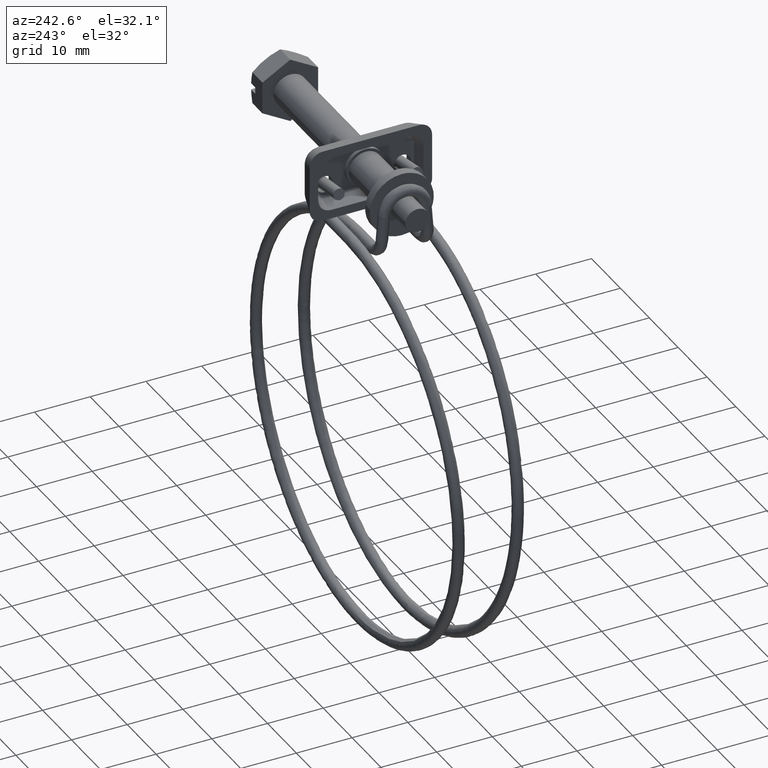
[diagram: clean part render]
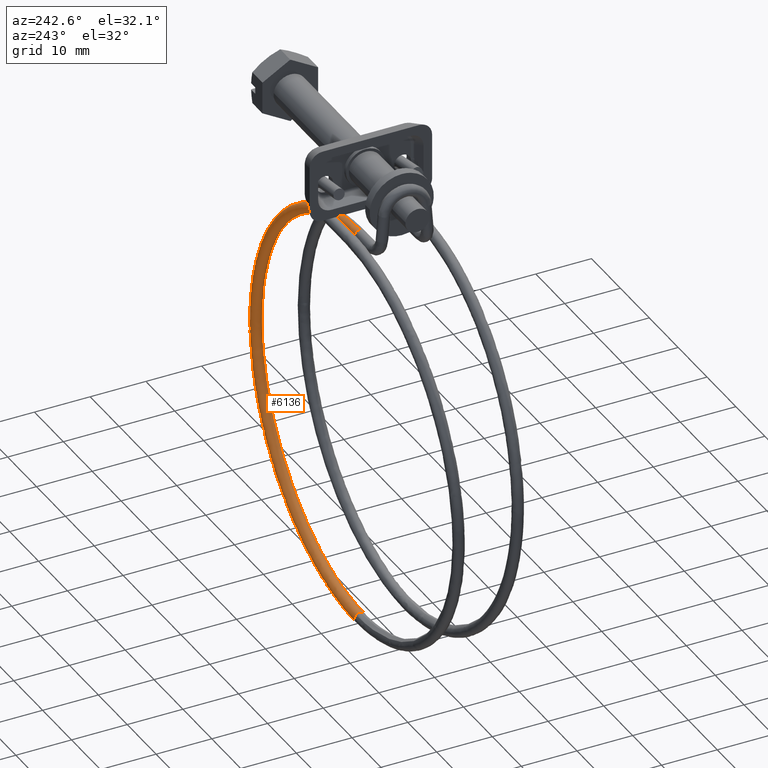
[diagram: same view with one face highlighted and labeled with its STEP entity id]
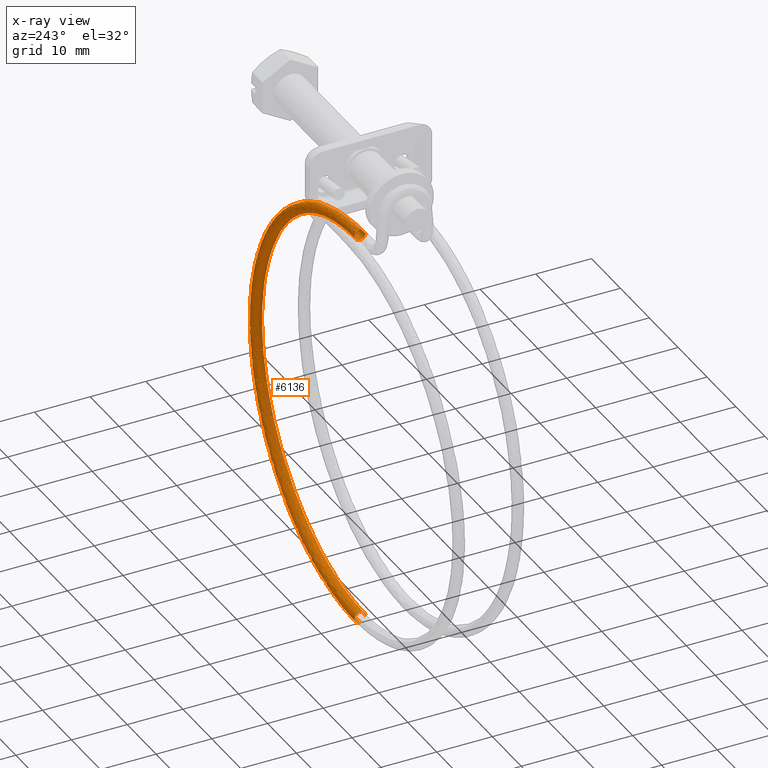
[diagram: x-ray of the same camera — body ghosted, the highlighted face saturated]
A machine part, auxiliary view. The second image highlights one B-rep face of the part: STEP entity #6136.
The next image is the same camera in x-ray: the body ghosted, the highlighted face saturated — about 1% of this face is hidden behind the body in this view.
In plain terms, the highlighted face is a freeform B-spline surface patch.
Its self-contained STEP definition (entity closure, byte-faithful):
#5485=CARTESIAN_POINT('',(-32.449999999944460,4.751499080579981,-8.742188882090543));
#5486=VERTEX_POINT('',#5485);
#5492=CARTESIAN_POINT('',(-32.450000000000799,4.300002000000000,-8.850001000000201));
#5493=VERTEX_POINT('',#5492);
#5494=CARTESIAN_POINT('',(-32.450000000000799,4.300002000000000,-8.850001000000201));
#5495=CARTESIAN_POINT('',(-32.450000000005510,4.538800049437971,-8.850034728318569));
#5496=CARTESIAN_POINT('',(-32.449999999944460,4.751499080579982,-8.742188882090543));
#5504=(BOUNDED_CURVE()B_SPLINE_CURVE(2,(#5494,#5495,#5496),.UNSPECIFIED.,.F.,.U.)B_SPLINE_CURVE_WITH_KNOTS((3,3),(0.0,0.076823484467236),.UNSPECIFIED.)CURVE()GEOMETRIC_REPRESENTATION_ITEM()RATIONAL_B_SPLINE_CURVE((1.0,0.909995689415704,0.875306936880663))REPRESENTATION_ITEM(''));
#5505=EDGE_CURVE('',#5493,#5486,#5504,.T.);
#5507=CARTESIAN_POINT('',(-32.449999999988933,3.302436391020597,-7.919735179436737));
#5508=VERTEX_POINT('',#5507);
#5509=CARTESIAN_POINT('',(-32.449999999988940,3.302436391020597,-7.919735179436737));
#5510=CARTESIAN_POINT('',(-32.450000000000792,3.367466891717507,-8.850001000000201));
#5511=CARTESIAN_POINT('',(-32.450000000000799,4.300002000000000,-8.850001000000201));
#5519=(BOUNDED_CURVE()B_SPLINE_CURVE(2,(#5509,#5510,#5511),.UNSPECIFIED.,.F.,.U.)B_SPLINE_CURVE_WITH_KNOTS((3,3),(0.762166633395311,1.0),.UNSPECIFIED.)CURVE()GEOMETRIC_REPRESENTATION_ITEM()RATIONAL_B_SPLINE_CURVE((0.972879199707561,0.721360878855651,1.0))REPRESENTATION_ITEM(''));
#5520=EDGE_CURVE('',#5508,#5493,#5519,.T.);
#5522=CARTESIAN_POINT('',(-32.449999998781593,4.293718980057824,-6.850040477898297));
#5523=VERTEX_POINT('',#5522);
#5539=CARTESIAN_POINT('',(-32.449999999354013,5.297414038749491,-7.806457974084745));
#5540=VERTEX_POINT('',#5539);
#5541=CARTESIAN_POINT('',(-32.449999999354006,5.297414038749491,-7.806457974084745));
#5542=CARTESIAN_POINT('',(-32.449999998776256,5.251955450665804,-6.850002301299442));
#5543=CARTESIAN_POINT('',(-32.449999998781593,4.293718980057824,-6.850040477898297));
#5551=(BOUNDED_CURVE()B_SPLINE_CURVE(2,(#5541,#5542,#5543),.UNSPECIFIED.,.F.,.U.)B_SPLINE_CURVE_WITH_KNOTS((3,3),(0.257622487838283,0.500000000000000),.UNSPECIFIED.)CURVE()GEOMETRIC_REPRESENTATION_ITEM()RATIONAL_B_SPLINE_CURVE((0.982683968838161,0.716037081179831,1.0))REPRESENTATION_ITEM(''));
#5552=EDGE_CURVE('',#5540,#5523,#5551,.T.);
#5654=CARTESIAN_POINT('',(-32.449999999944460,4.751499080579982,-8.742188882090543));
#5655=CARTESIAN_POINT('',(-32.449999999765637,5.299587624129888,-8.464498038340457));
#5656=CARTESIAN_POINT('',(-32.449999999381212,5.298441847448703,-7.849949297275303));
#5657=CARTESIAN_POINT('',(-32.449999999367591,5.298401285167072,-7.828193313304312));
#5658=CARTESIAN_POINT('',(-32.449999999354013,5.297414038749491,-7.806457974084745));
#5666=(BOUNDED_CURVE()B_SPLINE_CURVE(2,(#5654,#5655,#5656,#5657,#5658),.UNSPECIFIED.,.F.,.U.)B_SPLINE_CURVE_WITH_KNOTS((3,2,3),(0.076823484467236,0.250000000000000,0.257622487838282),.UNSPECIFIED.)CURVE()GEOMETRIC_REPRESENTATION_ITEM()RATIONAL_B_SPLINE_CURVE((0.875306936880663,0.797111091770843,1.0,0.991069700006716,0.982683968838161))REPRESENTATION_ITEM(''));
#5667=EDGE_CURVE('',#5486,#5540,#5666,.T.);
#6024=CARTESIAN_POINT('',(-37.423201233787459,3.302436326158569,-79.434426499103012));
#6025=CARTESIAN_POINT('',(4.003053115822867,3.302436326158568,-85.224068915779625));
#6026=CARTESIAN_POINT('',(3.477429845606320,3.302436326158569,-43.398499835019983));
#6027=CARTESIAN_POINT('',(2.963133057472227,3.302436326158567,-2.474216115136039));
#6028=CARTESIAN_POINT('',(-37.549993414134590,3.302436326158568,-8.283526114390204));
#6029=CARTESIAN_POINT('',(-37.292809021267480,3.368289162159302,-78.501439524725924));
#6030=CARTESIAN_POINT('',(3.047291620272104,3.368289162159304,-84.139283482236877));
#6031=CARTESIAN_POINT('',(2.535449650657238,3.368289162159302,-43.410337730389507));
#6032=CARTESIAN_POINT('',(2.034637194434173,3.368289162159304,-3.559046565839207));
#6033=CARTESIAN_POINT('',(-37.416276841278396,3.368289162159303,-9.216042442175782));
#6034=CARTESIAN_POINT('',(-37.294451533420798,4.312568039882352,-78.513192085823533));
#6035=CARTESIAN_POINT('',(3.059331065280091,4.312568039882351,-84.152948203648450));
#6036=CARTESIAN_POINT('',(2.547315496695710,4.312568039882352,-43.410188611921157));
#6037=CARTESIAN_POINT('',(2.046333182329940,4.312568039882351,-3.545381277359777));
#6038=CARTESIAN_POINT('',(-37.417961229416093,4.312568039882352,-9.204295809674161));
#6039=CARTESIAN_POINT('',(-37.296190831530922,5.312489084086169,-78.525637173225164));
#6040=CARTESIAN_POINT('',(3.072079941388659,5.312489084086169,-84.167418126491128));
#6041=CARTESIAN_POINT('',(2.559880544417382,5.312489084086169,-43.410030706562807));
#6042=CARTESIAN_POINT('',(2.058718362921847,5.312489084086169,-3.530910754034451));
#6043=CARTESIAN_POINT('',(-37.419744871076624,5.312489084086169,-9.191857000214375));
#6044=CARTESIAN_POINT('',(-37.434592491767482,5.299923044202815,-79.515933631405957));
#6045=CARTESIAN_POINT('',(4.086549864231330,5.299923044202816,-85.318837387666520));
#6046=CARTESIAN_POINT('',(3.559722639059032,5.299923044202815,-43.397465658841149));
#6047=CARTESIAN_POINT('',(3.044247839596520,5.299923044202816,-2.379443710482927));
#6048=CARTESIAN_POINT('',(-37.561675093187134,5.299923044202815,-8.202060098474778));
#6049=CARTESIAN_POINT('',(-37.572994152004036,5.287357004319463,-80.506230089586751));
#6050=CARTESIAN_POINT('',(5.101019787074001,5.287357004319462,-86.470256648841939));
#6051=CARTESIAN_POINT('',(4.559564733700682,5.287357004319463,-43.384900611119484));
#6052=CARTESIAN_POINT('',(4.029777316271193,5.287357004319463,-1.227976666931409));
#6053=CARTESIAN_POINT('',(-37.703605315297658,5.287357004319462,-7.212263196735180));
#6054=CARTESIAN_POINT('',(-37.571254853893919,4.287435960115648,-80.493785002185120));
#6055=CARTESIAN_POINT('',(5.088270910965428,4.287435960115648,-86.455786725999232));
#6056=CARTESIAN_POINT('',(4.546999685979010,4.287435960115648,-43.385058516477827));
#6057=CARTESIAN_POINT('',(4.017392135679286,4.287435960115648,-1.242447190256736));
#6058=CARTESIAN_POINT('',(-37.701821673637120,4.287435960115648,-7.224702006194961));
#6066=(BOUNDED_SURFACE()B_SPLINE_SURFACE(2,2,((#6024,#6029,#6034,#6039,#6044,#6049,#6054),(#6025,#6030,#6035,#6040,#6045,#6050,#6055),(#6026,#6031,#6036,#6041,#6046,#6051,#6056),(#6027,#6032,#6037,#6042,#6047,#6052,#6057),(#6028,#6033,#6038,#6043,#6048,#6053,#6058)),.UNSPECIFIED.,.F.,.F.,.U.)B_SPLINE_SURFACE_WITH_KNOTS((3,2,3),(3,2,2,3),(0.0,67.975257473168000,134.988853523734410),(0.0,1.590580079512703,3.247434329005102,4.904288578497502),.UNSPECIFIED.)GEOMETRIC_REPRESENTATION_ITEM()RATIONAL_B_SPLINE_SURFACE(((0.977505800795127,0.718822509939086,1.0,0.707106781186548,1.0,0.707106781186548,1.0),(0.636938328936494,0.468381474473210,0.651595446715910,0.460747558963097,0.651595446715910,0.460747558963097,0.651595446715910),(0.977505800795127,0.718822509939086,1.0,0.707106781186548,1.0,0.707106781186548,1.0),(0.641756414393672,0.471924520743230,0.656524405145884,0.464232858893119,0.656524405145884,0.464232858893119,0.656524405145884),(0.968005954981614,0.711836665961333,0.990281545331204,0.700234795987588,0.990281545331204,0.700234795987588,0.990281545331204)))REPRESENTATION_ITEM('')SURFACE());
#6067=CARTESIAN_POINT('',(-32.449999999991327,3.302485887033674,-79.780271342054320));
#6068=VERTEX_POINT('',#6067);
#6069=CARTESIAN_POINT('',(-32.449999999999001,4.300001999999000,-78.850001000000191));
#6070=VERTEX_POINT('',#6069);
#6071=CARTESIAN_POINT('',(-32.449999999991327,3.302485887033674,-79.780271342054320));
#6072=CARTESIAN_POINT('',(-32.449999999992308,3.319730377704456,-79.542534340304755));
#6073=CARTESIAN_POINT('',(-32.449999999993629,3.424196145422688,-79.311556064542671));
#6074=CARTESIAN_POINT('',(-32.449999999996443,3.777998799461701,-78.957772896960464));
#6075=CARTESIAN_POINT('',(-32.449999999997921,4.038195655368266,-78.850000495566263));
#6076=CARTESIAN_POINT('',(-32.449999999999001,4.300001999999000,-78.850001000000191));
#6077=B_SPLINE_CURVE_WITH_KNOTS('',3,(#6071,#6072,#6073,#6074,#6075,#6076),.UNSPECIFIED.,.F.,.U.,(4,2,4),(0.761111541811080,0.875000000000000,1.0),.UNSPECIFIED.);
#6078=EDGE_CURVE('',#6068,#6070,#6077,.T.);
#6079=ORIENTED_EDGE('',*,*,#6078,.F.);
#6080=CARTESIAN_POINT('',(-32.449999999991327,3.302485887033673,-79.780271342054320));
#6081=CARTESIAN_POINT('',(3.934640691679316,3.302485887033673,-79.780271342045523));
#6082=CARTESIAN_POINT('',(3.477429845600327,3.302460828042699,-43.398502079016232));
#6083=CARTESIAN_POINT('',(3.031567058809760,3.302436391020597,-7.919735179459358));
#6084=CARTESIAN_POINT('',(-32.449999999988933,3.302436391020598,-7.919735179436738));
#6092=(BOUNDED_CURVE()B_SPLINE_CURVE(2,(#6080,#6081,#6082,#6083,#6084),.UNSPECIFIED.,.F.,.U.)B_SPLINE_CURVE_WITH_KNOTS((3,2,3),(-3.822326489117339,-2.0,-0.208790604144004),.UNSPECIFIED.)CURVE()GEOMETRIC_REPRESENTATION_ITEM()RATIONAL_B_SPLINE_CURVE((0.922371478318131,0.667193238145271,0.977505800795127,0.672491973037074,0.913821779425248))REPRESENTATION_ITEM(''));
#6093=EDGE_CURVE('',#6068,#5508,#6092,.T.);
#6094=ORIENTED_EDGE('',*,*,#6093,.T.);
#6095=ORIENTED_EDGE('',*,*,#5520,.T.);
#6096=ORIENTED_EDGE('',*,*,#5505,.T.);
#6097=ORIENTED_EDGE('',*,*,#5667,.T.);
#6098=ORIENTED_EDGE('',*,*,#5552,.T.);
#6099=CARTESIAN_POINT('',(-32.449999999960021,4.287435984470577,-80.849920191923118));
#6100=VERTEX_POINT('',#6099);
#6101=CARTESIAN_POINT('',(-32.449999999960028,4.287435984470577,-80.849920191923118));
#6102=CARTESIAN_POINT('',(5.017821829429484,4.287435984470632,-80.849920191882632));
#6103=CARTESIAN_POINT('',(4.546999685979014,4.290616958450818,-43.385037614985841));
#6104=CARTESIAN_POINT('',(4.087863436795060,4.293718980057772,-6.850040479101494));
#6105=CARTESIAN_POINT('',(-32.449999998781593,4.293718980057824,-6.850040477898298));
#6113=(BOUNDED_CURVE()B_SPLINE_CURVE(2,(#6101,#6102,#6103,#6104,#6105),.UNSPECIFIED.,.F.,.U.)B_SPLINE_CURVE_WITH_KNOTS((3,2,3),(-3.822326489116296,-2.0,-0.208790604183801),.UNSPECIFIED.)CURVE()GEOMETRIC_REPRESENTATION_ITEM()RATIONAL_B_SPLINE_CURVE((0.943596935759931,0.682546576810836,1.0,0.687967245306196,0.934850492622345))REPRESENTATION_ITEM(''));
#6114=EDGE_CURVE('',#6100,#5523,#6113,.T.);
#6115=ORIENTED_EDGE('',*,*,#6114,.F.);
#6116=CARTESIAN_POINT('',(-32.449999999999001,5.028950504758386,-79.165464811943224));
#6117=VERTEX_POINT('',#6116);
#6118=CARTESIAN_POINT('',(-32.449999999999001,5.028950504758386,-79.165464811943224));
#6119=CARTESIAN_POINT('',(-32.449999979543783,5.631830972138324,-79.808333853320278));
#6120=CARTESIAN_POINT('',(-32.450000009471758,5.168495625514143,-80.861248512243804));
#6121=CARTESIAN_POINT('',(-32.449999999960021,4.287435984470577,-80.849920191923118));
#6122=B_SPLINE_CURVE_WITH_KNOTS('',3,(#6118,#6119,#6120,#6121),.UNSPECIFIED.,.F.,.U.,(4,4),(0.0,2.643994924500376),.UNSPECIFIED.);
#6123=EDGE_CURVE('',#6117,#6100,#6122,.T.);
#6124=ORIENTED_EDGE('',*,*,#6123,.F.);
#6125=CARTESIAN_POINT('',(-32.449999999999001,4.300001999999000,-78.850001000000191));
#6126=CARTESIAN_POINT('',(-32.449999999999001,4.561801387798150,-78.850001000000191));
#6127=CARTESIAN_POINT('',(-32.449999999999001,4.821988658762280,-78.957774096390395));
#6128=CARTESIAN_POINT('',(-32.449999999999001,5.014513946129264,-79.150299383757371));
#6129=CARTESIAN_POINT('',(-32.449999999999001,5.021795343796236,-79.157824667819099));
#6130=CARTESIAN_POINT('',(-32.449999999999001,5.028950504758386,-79.165464811943224));
#6131=B_SPLINE_CURVE_WITH_KNOTS('',3,(#6125,#6126,#6127,#6128,#6129,#6130),.UNSPECIFIED.,.F.,.U.,(4,2,4),(0.0,0.125000000000000,0.130000243116999),.UNSPECIFIED.);
#6132=EDGE_CURVE('',#6070,#6117,#6131,.T.);
#6133=ORIENTED_EDGE('',*,*,#6132,.F.);
#6134=EDGE_LOOP('',(#6079,#6094,#6095,#6096,#6097,#6098,#6115,#6124,#6133));
#6135=FACE_OUTER_BOUND('',#6134,.T.);
#6136=ADVANCED_FACE('',(#6135),#6066,.T.);